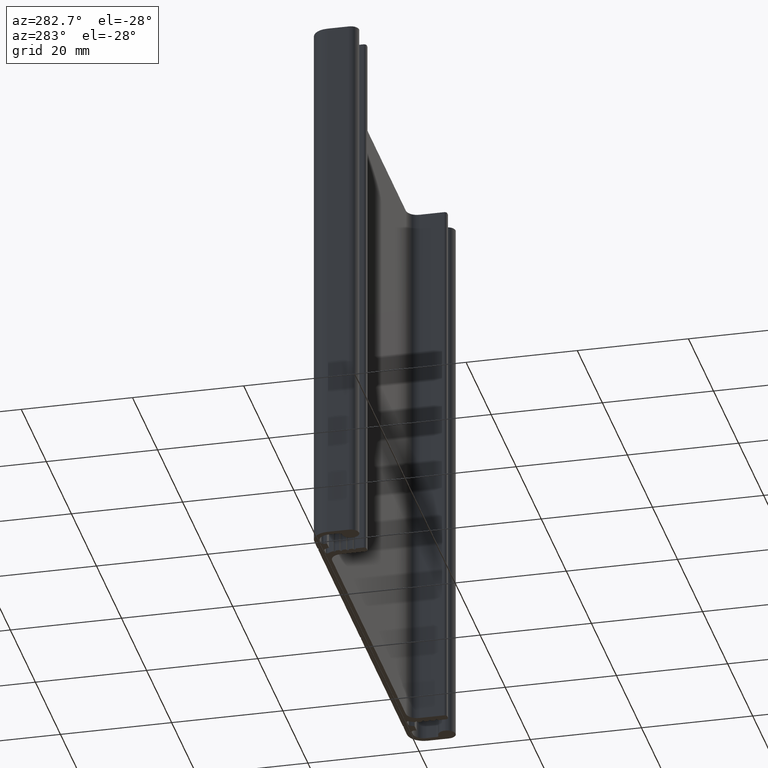
[diagram: clean part render]
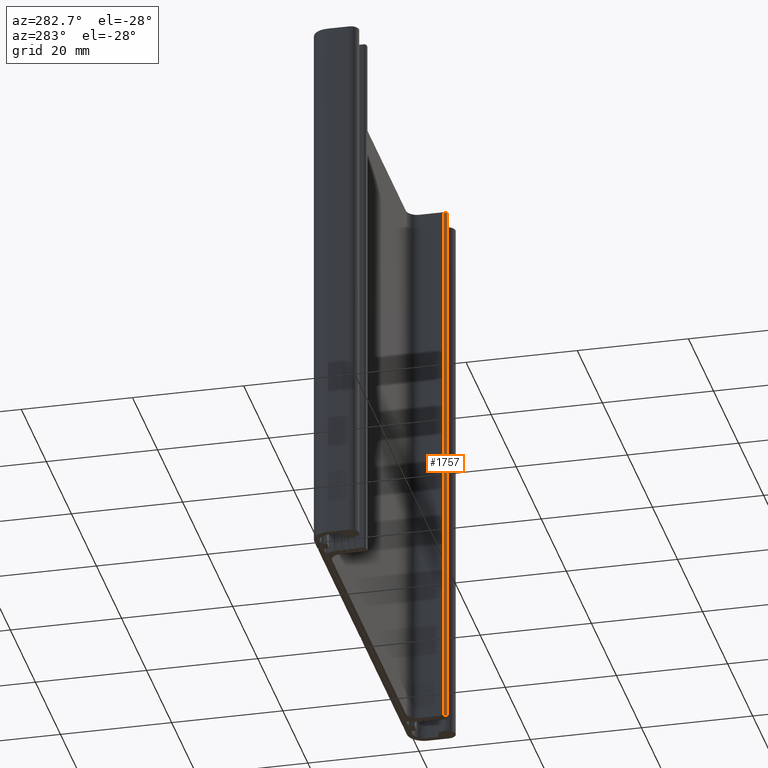
[diagram: same view with one face highlighted and labeled with its STEP entity id]
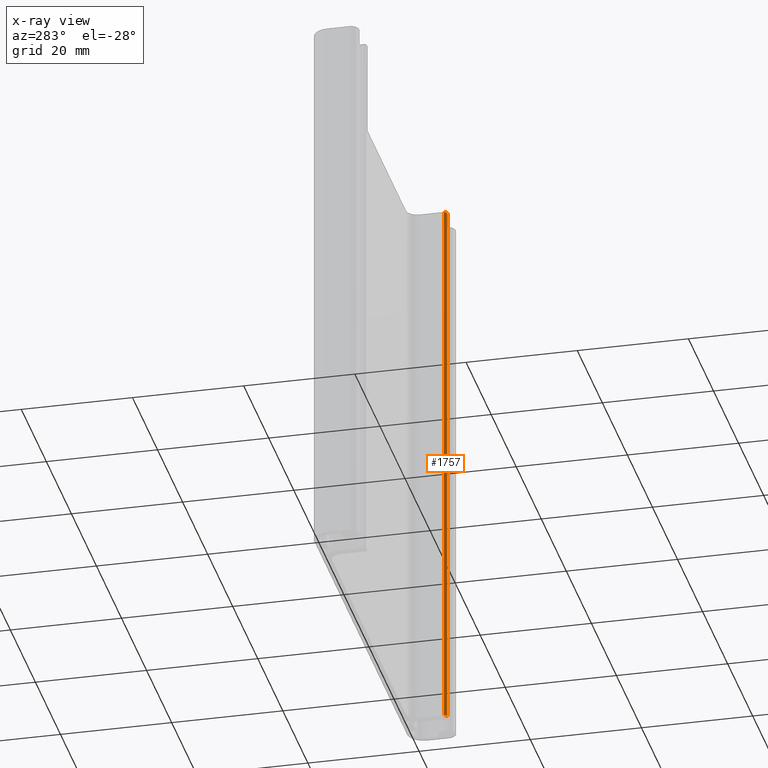
[diagram: x-ray of the same camera — body ghosted, the highlighted face saturated]
A machine part, auxiliary view. The second image highlights one B-rep face of the part: STEP entity #1757.
The next image is the same camera in x-ray: the body ghosted, the highlighted face saturated — about 0% of this face is hidden behind the body in this view.
In plain terms, the highlighted cylindrical surface (edge-blend (fillet) strip) has radius 0.5 mm, axis along (0, 0, 1).
Its self-contained STEP definition (entity closure, byte-faithful):
#23=CIRCLE('',#1860,0.499999999999995);
#24=CIRCLE('',#1861,0.499999999999995);
#97=CYLINDRICAL_SURFACE('',#1859,0.499999999999995);
#146=FACE_OUTER_BOUND('',#238,.T.);
#238=EDGE_LOOP('',(#1206,#1207,#1208,#1209));
#350=LINE('',#2628,#542);
#351=LINE('',#2634,#543);
#542=VECTOR('',#2087,100.);
#543=VECTOR('',#2094,100.);
#728=VERTEX_POINT('',#2624);
#729=VERTEX_POINT('',#2626);
#730=VERTEX_POINT('',#2630);
#731=VERTEX_POINT('',#2632);
#922=EDGE_CURVE('',#728,#729,#350,.T.);
#923=EDGE_CURVE('',#730,#728,#23,.T.);
#924=EDGE_CURVE('',#731,#729,#24,.T.);
#925=EDGE_CURVE('',#730,#731,#351,.T.);
#1206=ORIENTED_EDGE('',*,*,#923,.T.);
#1207=ORIENTED_EDGE('',*,*,#922,.T.);
#1208=ORIENTED_EDGE('',*,*,#924,.F.);
#1209=ORIENTED_EDGE('',*,*,#925,.F.);
#1757=ADVANCED_FACE('',(#146),#97,.T.);
#1859=AXIS2_PLACEMENT_3D('',#2629,#2088,#2089);
#1860=AXIS2_PLACEMENT_3D('',#2631,#2090,#2091);
#1861=AXIS2_PLACEMENT_3D('',#2633,#2092,#2093);
#2087=DIRECTION('',(0.,0.,1.));
#2088=DIRECTION('center_axis',(0.,0.,1.));
#2089=DIRECTION('ref_axis',(-1.,1.99840144432532E-14,0.));
#2090=DIRECTION('center_axis',(0.,0.,1.));
#2091=DIRECTION('ref_axis',(-1.,1.99840144432532E-14,0.));
#2092=DIRECTION('center_axis',(0.,0.,1.));
#2093=DIRECTION('ref_axis',(-1.,1.99840144432532E-14,0.));
#2094=DIRECTION('',(0.,0.,1.));
#2624=CARTESIAN_POINT('',(31.9000000035076,-6.90000000069072,0.));
#2626=CARTESIAN_POINT('',(31.9000000035076,-6.90000000069072,100.));
#2628=CARTESIAN_POINT('',(31.9000000035076,-6.90000000069072,0.));
#2629=CARTESIAN_POINT('Origin',(31.9000000035076,-6.40000000069073,0.));
#2630=CARTESIAN_POINT('',(31.4000000035076,-6.40000000069072,0.));
#2631=CARTESIAN_POINT('Origin',(31.9000000035076,-6.40000000069073,0.));
#2632=CARTESIAN_POINT('',(31.4000000035076,-6.40000000069072,100.));
#2633=CARTESIAN_POINT('Origin',(31.9000000035076,-6.40000000069073,100.));
#2634=CARTESIAN_POINT('',(31.4000000035076,-6.40000000069072,0.));